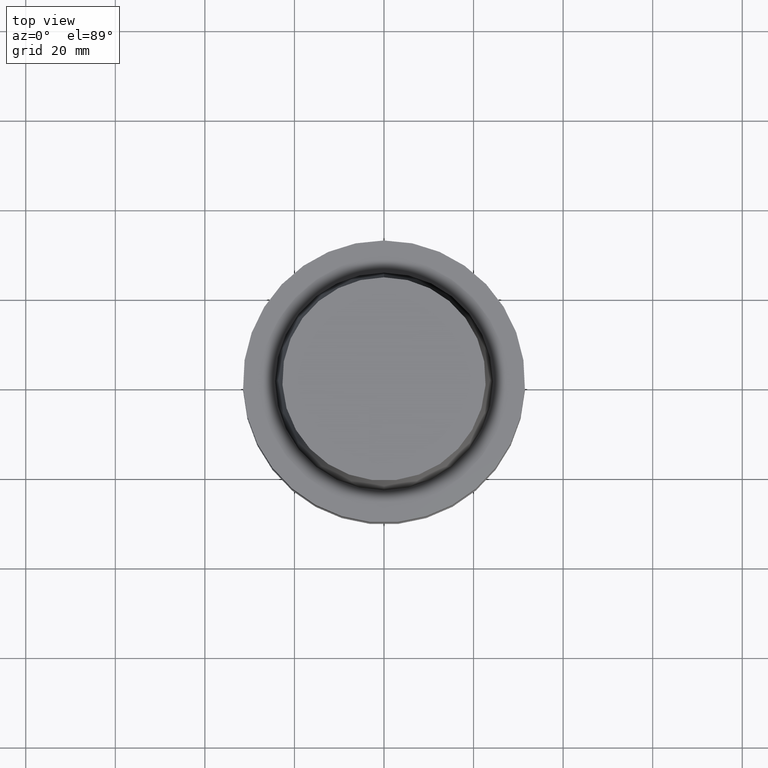
[diagram: clean part render]
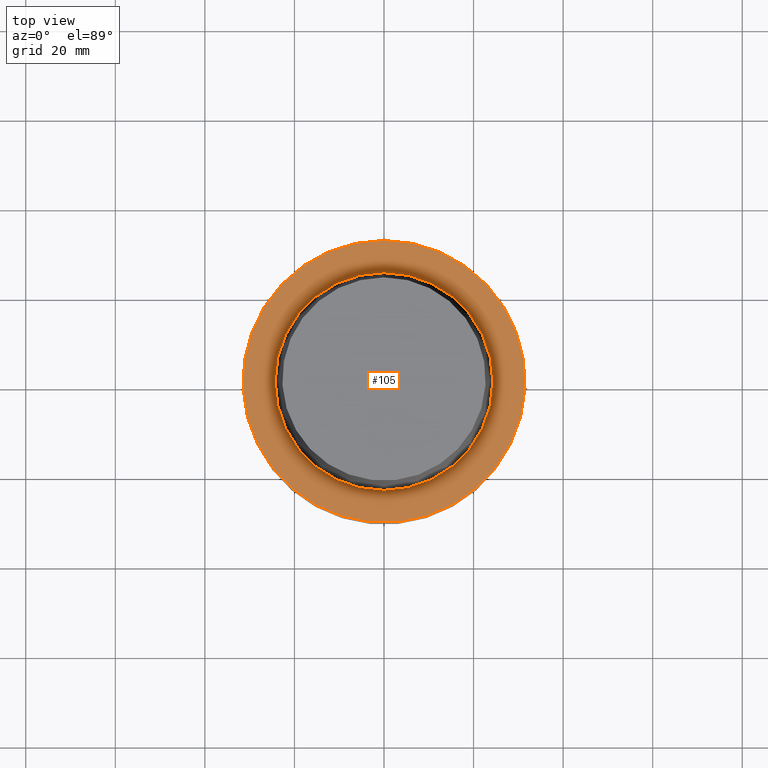
[diagram: same view with one face highlighted and labeled with its STEP entity id]
A machine part, top view. The second image highlights one B-rep face of the part: STEP entity #105.
In plain terms, the highlighted planar face has unit normal (-0, -0, 1).
Its self-contained STEP definition (entity closure, byte-faithful):
#105=ADVANCED_FACE('Unnamed[1]',(#255,#256),#257,.T.);
#107=EDGE_CURVE('Unnamed[1]',#259,#259,#260,.T.);
#154=EDGE_CURVE('Unnamed[1]',#333,#333,#334,.T.);
#255=FACE_BOUND('',#457,.T.);
#256=FACE_OUTER_BOUND('',#458,.T.);
#257=PLANE('',#459);
#259=VERTEX_POINT('',#462);
#260=CIRCLE('',#463,31.5000000000001);
#333=VERTEX_POINT('',#553);
#334=CIRCLE('',#554,24.315);
#457=EDGE_LOOP('',(#675));
#458=EDGE_LOOP('',(#676));
#459=AXIS2_PLACEMENT_3D('',#677,#678,#679);
#462=CARTESIAN_POINT('',(-3.88267476788467E-031,31.5000000000001,3.85763741731417E-015));
#463=AXIS2_PLACEMENT_3D('',#680,#681,#682);
#553=CARTESIAN_POINT('',(-2.99705514225764E-031,24.315,2.97772869212679E-015));
#554=AXIS2_PLACEMENT_3D('',#762,#763,#764);
#675=ORIENTED_EDGE('',*,*,#154,.F.);
#676=ORIENTED_EDGE('',*,*,#107,.T.);
#677=CARTESIAN_POINT('',(-3.43986495507116E-031,27.9075,3.41768305472048E-015));
#678=DIRECTION('',(-6.12323399573677E-017,-1.22464679914735E-016,1.0));
#679=DIRECTION('',(-1.23259516440783E-032,1.0,1.22464679914735E-016));
#680=CARTESIAN_POINT('',(0.0,0.0,0.0));
#681=DIRECTION('',(-6.12323399573677E-017,-1.22464679914735E-016,1.0));
#682=DIRECTION('',(-1.23259516440783E-032,1.0,1.22464679914735E-016));
#762=CARTESIAN_POINT('',(0.0,0.0,0.0));
#763=DIRECTION('',(-6.12323399573677E-017,-1.22464679914735E-016,1.0));
#764=DIRECTION('',(-1.23259516440783E-032,1.0,1.22464679914735E-016));